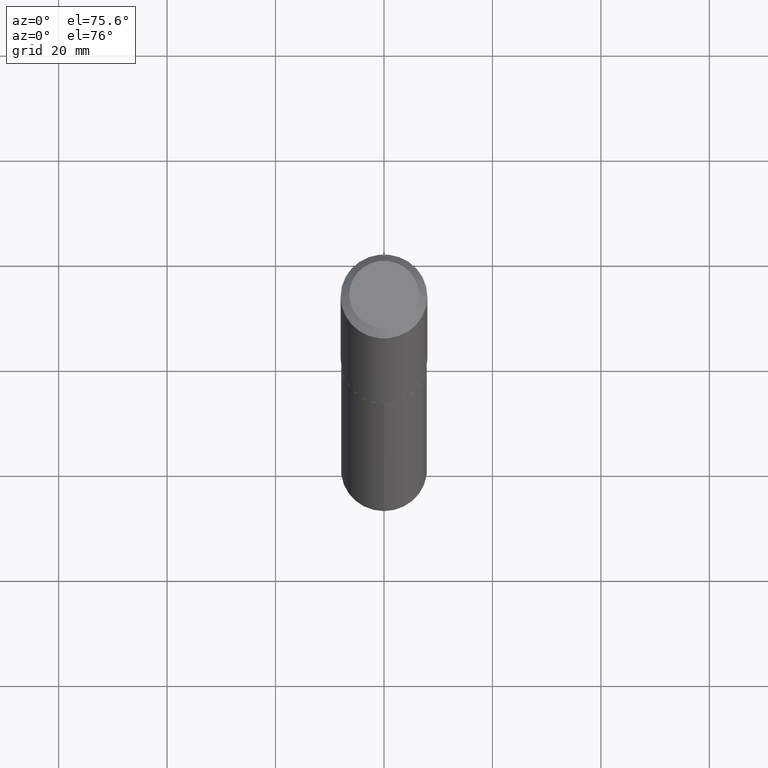
[diagram: clean part render]
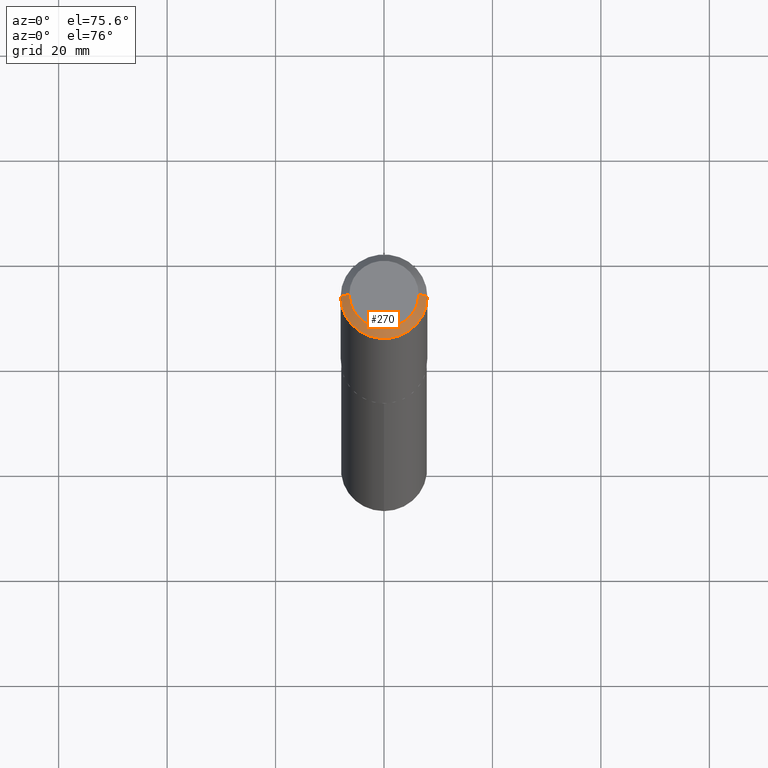
[diagram: same view with one face highlighted and labeled with its STEP entity id]
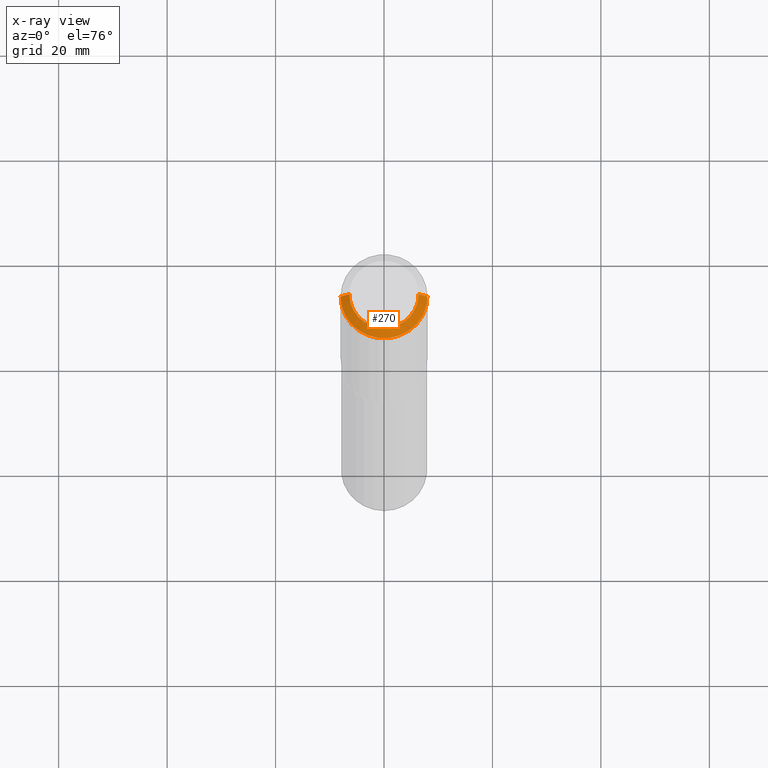
[diagram: x-ray of the same camera — body ghosted, the highlighted face saturated]
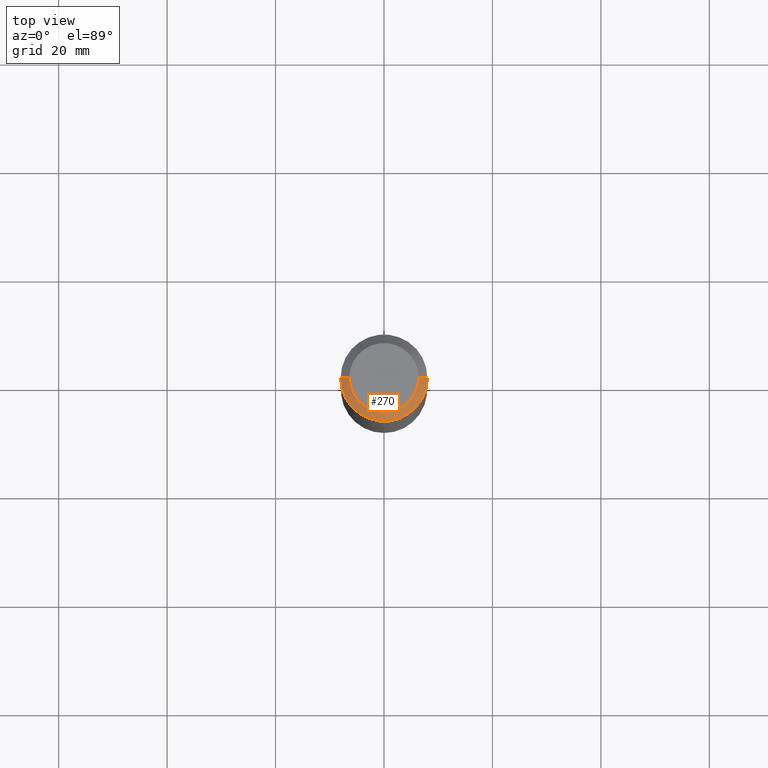
[diagram: same view with one face highlighted and labeled with its STEP entity id]
A machine part, auxiliary view. The second image highlights one B-rep face of the part: STEP entity #270.
The next image is the same camera in x-ray: the body ghosted, the highlighted face saturated — about 0% of this face is hidden behind the body in this view.
A second angle (top view) of the same face is appended — the face is thin or edge-on in the first view.
In plain terms, the highlighted conical surface has half-angle 45 deg.
Its self-contained STEP definition (entity closure, byte-faithful):
#16 = ORIENTED_EDGE ( 'NONE', *, *, #187, .T. ) ;
#24 = VERTEX_POINT ( 'NONE', #331 ) ;
#30 = CIRCLE ( 'NONE', #221, 0.3149500000000000077 ) ;
#33 = CIRCLE ( 'NONE', #164, 0.2519600000000000173 ) ;
#57 = CARTESIAN_POINT ( 'NONE',  ( 0.3149500000000000077, -2.380642253931875190E-15, -0.06299000000000036514 ) ) ;
#62 = CARTESIAN_POINT ( 'NONE',  ( -0.2519600000000000173, 1.869391481036695286E-15, 3.855188123703174230E-18 ) ) ;
#66 = DIRECTION ( 'NONE',  ( 1.000000000000000000, -6.982962677686266711E-15, 4.876115136096691995E-29 ) ) ;
#71 = DIRECTION ( 'NONE',  ( -2.445468806185136597E-29, 3.491481338843145583E-15, 1.000000000000000000 ) ) ;
#74 = EDGE_CURVE ( 'NONE', #24, #251, #148, .T. ) ;
#79 = CARTESIAN_POINT ( 'NONE',  ( -0.3149500000000000077, -1.139699956480256043E-15, -0.06299000000000036514 ) ) ;
#83 = LINE ( 'NONE', #418, #92 ) ;
#90 = VERTEX_POINT ( 'NONE', #79 ) ;
#92 = VECTOR ( 'NONE', #193, 39.37007874015748143 ) ;
#97 = DIRECTION ( 'NONE',  ( 0.7071067811865453523, -7.319954787623248157E-15, -0.7071067811865496822 ) ) ;
#107 = DIRECTION ( 'NONE',  ( -1.000000000000000000, 6.982962677686266711E-15, 0.000000000000000000 ) ) ;
#133 = EDGE_CURVE ( 'NONE', #181, #24, #33, .T. ) ;
#135 = EDGE_LOOP ( 'NONE', ( #366, #146, #247, #16 ) ) ;
#146 = ORIENTED_EDGE ( 'NONE', *, *, #133, .F. ) ;
#148 = LINE ( 'NONE', #57, #372 ) ;
#154 = AXIS2_PLACEMENT_3D ( 'NONE', #220, #298, #107 ) ;
#164 = AXIS2_PLACEMENT_3D ( 'NONE', #214, #71, #66 ) ;
#181 = VERTEX_POINT ( 'NONE', #62 ) ;
#187 = EDGE_CURVE ( 'NONE', #90, #251, #30, .T. ) ;
#188 = CONICAL_SURFACE ( 'NONE', #154, 0.3149500000000000077, 0.7853981633974452814 ) ;
#193 = DIRECTION ( 'NONE',  ( -0.7071067811865453523, 2.468850131082234184E-15, -0.7071067811865496822 ) ) ;
#214 = CARTESIAN_POINT ( 'NONE',  ( -9.427742298522548188E-47, 1.346031739168365618E-32, 3.855188123715863027E-18 ) ) ;
#218 = CARTESIAN_POINT ( 'NONE',  ( 1.540400801016026329E-30, -2.199284095337310135E-16, -0.06299000000000036514 ) ) ;
#220 = CARTESIAN_POINT ( 'NONE',  ( 1.540400801016026329E-30, -2.199284095337310135E-16, -0.06299000000000036514 ) ) ;
#221 = AXIS2_PLACEMENT_3D ( 'NONE', #218, #361, #285 ) ;
#247 = ORIENTED_EDGE ( 'NONE', *, *, #302, .T. ) ;
#251 = VERTEX_POINT ( 'NONE', #444 ) ;
#270 = ADVANCED_FACE ( 'NONE', ( #484 ), #188, .T. ) ;
#285 = DIRECTION ( 'NONE',  ( 1.000000000000000000, -6.982962677686266711E-15, 0.000000000000000000 ) ) ;
#298 = DIRECTION ( 'NONE',  ( 2.445468806185136597E-29, -3.491481338843145583E-15, -1.000000000000000000 ) ) ;
#302 = EDGE_CURVE ( 'NONE', #181, #90, #83, .T. ) ;
#331 = CARTESIAN_POINT ( 'NONE',  ( 0.2519600000000000173, -2.054606664725195058E-15, 3.855188123729198166E-18 ) ) ;
#361 = DIRECTION ( 'NONE',  ( -2.445468806185136597E-29, 3.491481338843145583E-15, 1.000000000000000000 ) ) ;
#366 = ORIENTED_EDGE ( 'NONE', *, *, #74, .F. ) ;
#372 = VECTOR ( 'NONE', #97, 39.37007874015748143 ) ;
#418 = CARTESIAN_POINT ( 'NONE',  ( -0.3149500000000000077, 1.979355685803558833E-15, -0.06299000000000036514 ) ) ;
#444 = CARTESIAN_POINT ( 'NONE',  ( 0.3149500000000000077, -2.419212504871020909E-15, -0.06299000000000036514 ) ) ;
#484 = FACE_OUTER_BOUND ( 'NONE', #135, .T. ) ;